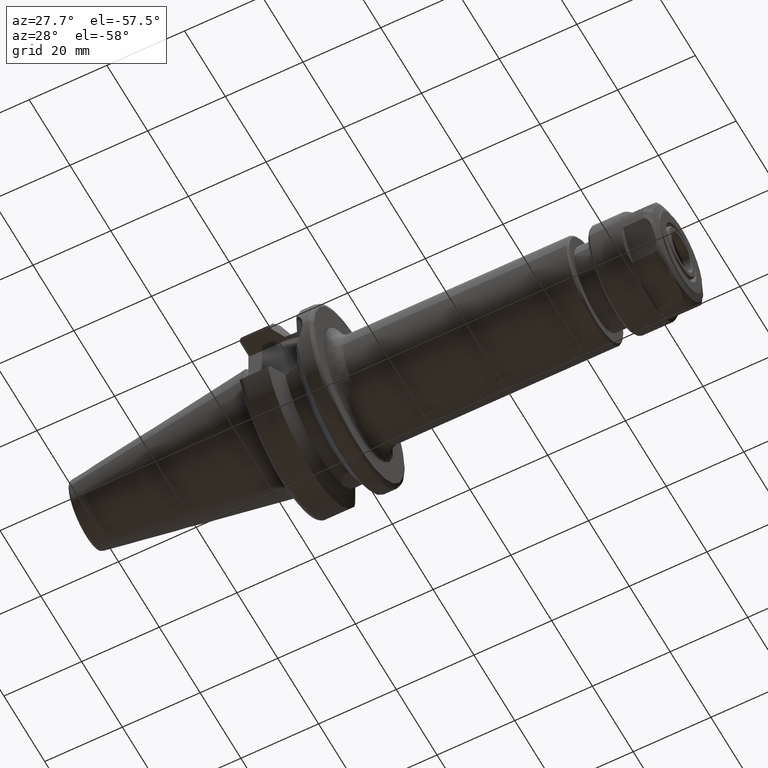
[diagram: clean part render]
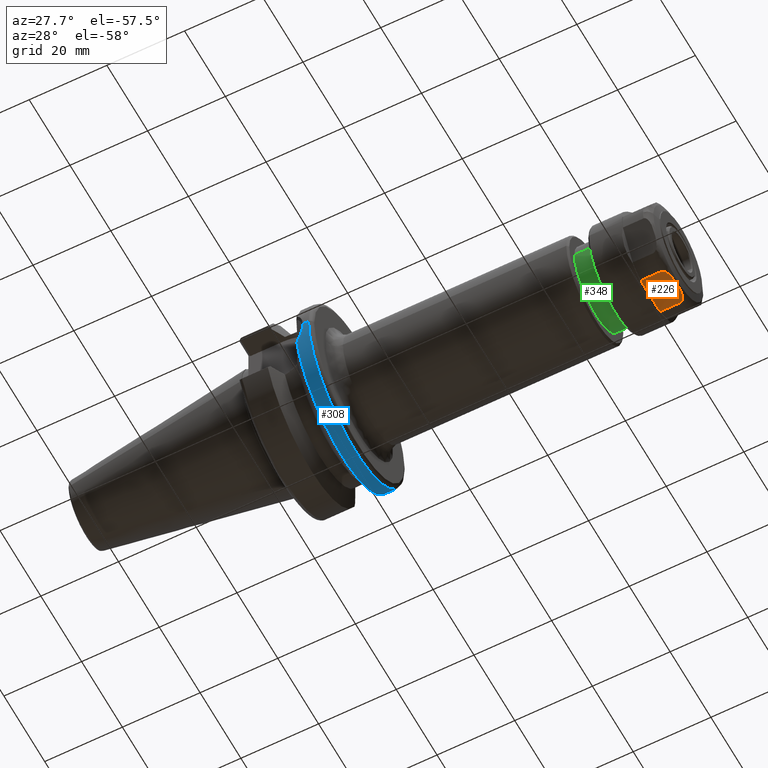
[diagram: same view with three faces highlighted in distinct colors, each labeled with its STEP entity id]
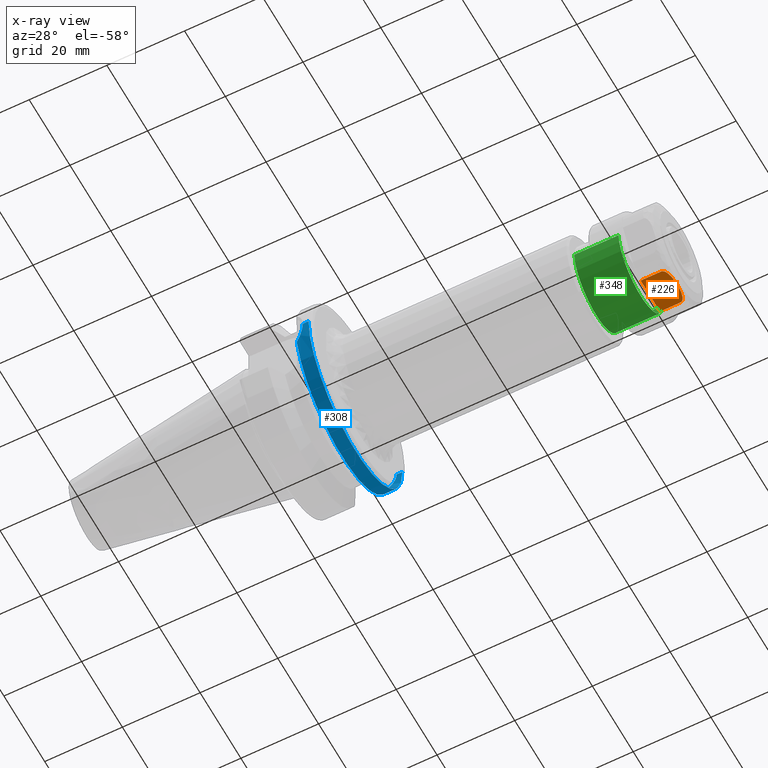
[diagram: x-ray of the same camera — body ghosted, the three highlighted faces saturated]
A machine part, auxiliary view with three faces highlighted in distinct colors.
The next image is the same camera in x-ray (body ghosted, the three faces saturated) — at least one of them is partly hidden behind the body in this view.
Their STEP definitions:

[orange] entity #226 — the highlighted planar face has unit normal (0, 0, 1).
#226=ADVANCED_FACE('',(#785),#784,.F.);
#784=PLANE('',#2609);
#785=FACE_OUTER_BOUND('',#2610,.T.);
#2606=CARTESIAN_POINT('',(1.04494649977E+02,5.67911965009E+00,-1.27500000000E+01));
#2607=DIRECTION('',(2.57293005457E-15,2.22044604925E-16,1.00000000000E+00));
#2608=DIRECTION('',(-1.00000000000E+00,5.71305237466E-31,2.57293005457E-15));
#2609=AXIS2_PLACEMENT_3D('',#2606,#2607,#2608);
#2610=EDGE_LOOP('',(#4164,#4165,#4166,#4167));
#4164=ORIENTED_EDGE('',*,*,#4974,.T.);
#4165=ORIENTED_EDGE('',*,*,#4975,.T.);
#4166=ORIENTED_EDGE('',*,*,#4976,.T.);
#4167=ORIENTED_EDGE('',*,*,#4972,.F.);
#4972=EDGE_CURVE('',#5873,#5978,#5979,.T.);
#4974=EDGE_CURVE('',#5873,#5991,#5992,.T.);
#4975=EDGE_CURVE('',#5991,#5998,#5999,.T.);
#4976=EDGE_CURVE('',#5998,#5978,#6005,.T.);
#5873=VERTEX_POINT('',#8529);
#5978=VERTEX_POINT('',#8671);
#5979=LINE('',#8672,#8673);
#5991=VERTEX_POINT('',#8678);
#5992=LINE('',#8679,#8680);
#5998=VERTEX_POINT('',#8682);
#5999=(BOUNDED_CURVE() B_SPLINE_CURVE(3,(#8683,#8684,#8685,#8686,#8687,#8688,#8689,#8690,#8691,#8692,#8693,#8694,#8695,#8696,#8697,#8698,#8699,#8700,#8701,#8702,#8703,#8704,#8705,#8706,#8707,#8708,#8709,#8710,#8711,#8712,#8713,#8714),.UNSPECIFIED.,.F.,.F.) B_SPLINE_CURVE_WITH_KNOTS((4,2,2,2,2,2,2,2,2,2,2,2,2,2,2,4),(1.59478873352E-02,1.62801200290E-02,1.66123527228E-02,1.69445854166E-02,1.72768181104E-02,1.79412834980E-02,1.86057488856E-02,1.99346796608E-02,2.12636104360E-02,2.25925412111E-02,2.39214719863E-02,2.45859373739E-02,2.52504027615E-02,2.59148681491E-02,2.62471008429E-02,2.65793335367E-02),.UNSPECIFIED.) CURVE() GEOMETRIC_REPRESENTATION_ITEM() RATIONAL_B_SPLINE_CURVE((1.00000000000E+00,1.00000000000E+00,1.00000000000E+00,1.00000000000E+00,1.00000000000E+00,1.00000000000E+00,1.00000000000E+00,1.00000000000E+00,1.00000000000E+00,1.00000000000E+00,1.00000000000E+00,1.00000000000E+00,1.00000000000E+00,1.00000000000E+00,1.00000000000E+00,1.00000000000E+00,1.00000000000E+00,1.00000000000E+00,1.00000000000E+00,1.00000000000E+00,1.00000000000E+00,1.00000000000E+00,1.00000000000E+00,1.00000000000E+00,1.00000000000E+00,1.00000000000E+00,1.00000000000E+00,1.00000000000E+00,1.00000000000E+00,1.00000000000E+00,1.00000000000E+00,1.00000000000E+00)) REPRESENTATION_ITEM('') );
#6005=LINE('',#8715,#8716);
#8529=CARTESIAN_POINT('',(9.69000000000E+01,4.73259970841E+00,-1.27500000000E+01));
#8671=CARTESIAN_POINT('',(9.69000000000E+01,-4.73259970841E+00,-1.27500000000E+01));
#8672=CARTESIAN_POINT('',(9.69000000000E+01,4.73259970841E+00,-1.27500000000E+01));
#8673=VECTOR('',#8674,9.46519941681E+00);
#8674=DIRECTION('',(0.00000000000E+00,-1.00000000000E+00,1.87672415675E-16));
#8678=CARTESIAN_POINT('',(1.02167716229E+02,4.73259970841E+00,-1.27500000000E+01));
#8679=CARTESIAN_POINT('',(9.69000000000E+01,4.73259970841E+00,-1.27500000000E+01));
#8680=VECTOR('',#8681,5.26771622940E+00);
#8681=DIRECTION('',(1.00000000000E+00,0.00000000000E+00,0.00000000000E+00));
#8682=CARTESIAN_POINT('',(1.02167716229E+02,-4.73259970841E+00,-1.27500000000E+01));
#8683=CARTESIAN_POINT('',(1.02167716229E+02,4.73259970841E+00,-1.27500000000E+01));
#8684=CARTESIAN_POINT('',(1.02279862248E+02,4.73259970841E+00,-1.27500000000E+01));
#8685=CARTESIAN_POINT('',(1.02392367140E+02,4.70406768498E+00,-1.27500000000E+01));
#8686=CARTESIAN_POINT('',(1.02595948561E+02,4.60586069696E+00,-1.27500000000E+01));
#8687=CARTESIAN_POINT('',(1.02687201511E+02,4.53777843351E+00,-1.27500000000E+01));
#8688=CARTESIAN_POINT('',(1.02849952060E+02,4.38252692373E+00,-1.27500000000E+01));
#8689=CARTESIAN_POINT('',(1.02922160542E+02,4.29461393412E+00,-1.27500000000E+01));
#8690=CARTESIAN_POINT('',(1.03050152465E+02,4.11125813472E+00,-1.27500000000E+01));
#8691=CARTESIAN_POINT('',(1.03106785546E+02,4.01478363767E+00,-1.27500000000E+01));
#8692=CARTESIAN_POINT('',(1.03261053144E+02,3.71517680680E+00,-1.27500000000E+01));
#8693=CARTESIAN_POINT('',(1.03341450105E+02,3.50576656171E+00,-1.27500000000E+01));
#8694=CARTESIAN_POINT('',(1.03475223228E+02,3.08286179191E+00,-1.27500000000E+01));
#8695=CARTESIAN_POINT('',(1.03528760119E+02,2.86779801825E+00,-1.27500000000E+01));
#8696=CARTESIAN_POINT('',(1.03663096816E+02,2.21549898970E+00,-1.27500000000E+01));
#8697=CARTESIAN_POINT('',(1.03718086901E+02,1.77071088567E+00,-1.27500000000E+01));
#8698=CARTESIAN_POINT('',(1.03788720300E+02,8.82903885814E-01,-1.27500000000E+01));
#8699=CARTESIAN_POINT('',(1.03804227252E+02,4.36336693840E-01,-1.27500000000E+01));
#8700=CARTESIAN_POINT('',(1.03803814943E+02,-4.53155157651E-01,-1.27500000000E+01));
#8701=CARTESIAN_POINT('',(1.03787983617E+02,-8.96495959058E-01,-1.27500000000E+01));
#8702=CARTESIAN_POINT('',(1.03717022627E+02,-1.77964358147E+00,-1.27500000000E+01));
#8703=CARTESIAN_POINT('',(1.03662607679E+02,-2.21951467469E+00,-1.27500000000E+01));
#8704=CARTESIAN_POINT('',(1.03527210555E+02,-2.87448551856E+00,-1.27500000000E+01));
#8705=CARTESIAN_POINT('',(1.03473134453E+02,-3.09052883336E+00,-1.27500000000E+01));
#8706=CARTESIAN_POINT('',(1.03338902180E+02,-3.51272035086E+00,-1.27500000000E+01));
#8707=CARTESIAN_POINT('',(1.03259173166E+02,-3.71940909846E+00,-1.27500000000E+01));
#8708=CARTESIAN_POINT('',(1.03053954495E+02,-4.11679756457E+00,-1.27500000000E+01));
#8709=CARTESIAN_POINT('',(1.02930859355E+02,-4.30512183169E+00,-1.27500000000E+01));
#8710=CARTESIAN_POINT('',(1.02688520442E+02,-4.53663239512E+00,-1.27500000000E+01));
#8711=CARTESIAN_POINT('',(1.02596329656E+02,-4.60562308606E+00,-1.27500000000E+01));
#8712=CARTESIAN_POINT('',(1.02392660840E+02,-4.70397959929E+00,-1.27500000000E+01));
#8713=CARTESIAN_POINT('',(1.02281738246E+02,-4.73259970841E+00,-1.27500000000E+01));
#8714=CARTESIAN_POINT('',(1.02167716229E+02,-4.73259970841E+00,-1.27500000000E+01));
#8715=CARTESIAN_POINT('',(1.02167716229E+02,-4.73259970841E+00,-1.27500000000E+01));
#8716=VECTOR('',#8717,5.26771622940E+00);
#8717=DIRECTION('',(-1.00000000000E+00,0.00000000000E+00,0.00000000000E+00));

[blue] entity #308 — the highlighted cylindrical surface (partial cylindrical patch) has radius 23 mm, axis along (-1, -0, -0).
#308=ADVANCED_FACE('',(#1616),#1615,.T.);
#1615=CYLINDRICAL_SURFACE('',#3268,2.30000000000E+01);
#1616=FACE_OUTER_BOUND('',#3269,.T.);
#3265=CARTESIAN_POINT('',(9.80000000000E+01,0.00000000000E+00,0.00000000000E+00));
#3266=DIRECTION('',(-1.00000000000E+00,-0.00000000000E+00,-0.00000000000E+00));
#3267=DIRECTION('',(0.00000000000E+00,-1.00000000000E+00,0.00000000000E+00));
#3268=AXIS2_PLACEMENT_3D('',#3265,#3266,#3267);
#3269=EDGE_LOOP('',(#4570,#4571,#4572,#4573,#4574,#4575));
#4570=ORIENTED_EDGE('',*,*,#5175,.F.);
#4571=ORIENTED_EDGE('',*,*,#5172,.T.);
#4572=ORIENTED_EDGE('',*,*,#5156,.T.);
#4573=ORIENTED_EDGE('',*,*,#5143,.T.);
#4574=ORIENTED_EDGE('',*,*,#5166,.T.);
#4575=ORIENTED_EDGE('',*,*,#5174,.F.);
#5143=EDGE_CURVE('',#7118,#7119,#7120,.T.);
#5156=EDGE_CURVE('',#7201,#7118,#7202,.T.);
#5166=EDGE_CURVE('',#7119,#7260,#7267,.T.);
#5172=EDGE_CURVE('',#7304,#7201,#7305,.T.);
#5174=EDGE_CURVE('',#7311,#7260,#7318,.T.);
#5175=EDGE_CURVE('',#7304,#7311,#7324,.T.);
#7118=VERTEX_POINT('',#9562);
#7119=VERTEX_POINT('',#9563);
#7120=CIRCLE('',#9567,2.30000000000E+01);
#7201=VERTEX_POINT('',#9617);
#7202=(BOUNDED_CURVE() B_SPLINE_CURVE(3,(#9618,#9619,#9620,#9621,#9622,#9623,#9624,#9625,#9626,#9627),.UNSPECIFIED.,.F.,.F.) B_SPLINE_CURVE_WITH_KNOTS((4,1,1,1,1,1,1,4),(4.99991747131E-01,6.24085882940E-01,7.50212113034E-01,8.00657128743E-01,8.50647832213E-01,9.00393536455E-01,9.50106650331E-01,1.00000000000E+00),.UNSPECIFIED.) CURVE() GEOMETRIC_REPRESENTATION_ITEM() RATIONAL_B_SPLINE_CURVE((1.00000000000E+00,1.00000000000E+00,1.00000000000E+00,1.00000000000E+00,1.00000000000E+00,1.00000000000E+00,1.00000000000E+00,1.00000000000E+00,1.00000000000E+00,1.00000000000E+00)) REPRESENTATION_ITEM('') );
#7260=VERTEX_POINT('',#9670);
#7267=(BOUNDED_CURVE() B_SPLINE_CURVE(3,(#9676,#9677,#9678,#9679,#9680),.UNSPECIFIED.,.F.,.F.) B_SPLINE_CURVE_WITH_KNOTS((4,1,4),(0.00000000000E+00,3.33228621153E-01,4.99599299760E-01),.UNSPECIFIED.) CURVE() GEOMETRIC_REPRESENTATION_ITEM() RATIONAL_B_SPLINE_CURVE((1.00000000000E+00,1.00000000000E+00,1.00000000000E+00,1.00000000000E+00,1.00000000000E+00)) REPRESENTATION_ITEM('') );
#7304=VERTEX_POINT('',#9698);
#7305=(BOUNDED_CURVE() B_SPLINE_CURVE(1,(#9699,#9700),.UNSPECIFIED.,.F.,.F.) B_SPLINE_CURVE_WITH_KNOTS((2,2),(8.33333358172E-02,4.50979950360E-01),.UNSPECIFIED.) CURVE() GEOMETRIC_REPRESENTATION_ITEM() RATIONAL_B_SPLINE_CURVE((1.00000000000E+00,1.00000000000E+00)) REPRESENTATION_ITEM('') );
#7311=VERTEX_POINT('',#9701);
#7318=(BOUNDED_CURVE() B_SPLINE_CURVE(1,(#9706,#9707),.UNSPECIFIED.,.F.,.F.) B_SPLINE_CURVE_WITH_KNOTS((2,2),(8.33333333333E-02,4.50980536771E-01),.UNSPECIFIED.) CURVE() GEOMETRIC_REPRESENTATION_ITEM() RATIONAL_B_SPLINE_CURVE((7.50000000000E-01,7.50000000000E-01)) REPRESENTATION_ITEM('') );
#7324=CIRCLE('',#9711,2.30000000000E+01);
#9562=CARTESIAN_POINT('',(1.76000000000E+01,-2.23341284256E+01,-5.49424312077E+00));
#9563=CARTESIAN_POINT('',(1.76000000000E+01,2.23342620281E+01,-5.49369999732E+00));
#9564=CARTESIAN_POINT('',(1.76000000000E+01,0.00000000000E+00,0.00000000000E+00));
#9565=DIRECTION('',(1.00000000000E+00,-0.00000000000E+00,0.00000000000E+00));
#9566=DIRECTION('',(-0.00000000000E+00,-1.00000000000E+00,-0.00000000000E+00));
#9567=AXIS2_PLACEMENT_3D('',#9564,#9565,#9566);
#9617=CARTESIAN_POINT('',(1.95000018283E+01,-2.29999999807E+01,5.73573428534E-14));
#9618=CARTESIAN_POINT('',(1.95000014030E+01,-2.29999999886E+01,1.56466401788E-03));
#9619=CARTESIAN_POINT('',(1.95002665759E+01,-2.30000483679E+01,-4.92506152186E-01));
#9620=CARTESIAN_POINT('',(1.94174715010E+01,-2.29677372392E+01,-1.48885980969E+00));
#9621=CARTESIAN_POINT('',(1.91164167804E+01,-2.28545889355E+01,-2.64902679498E+00));
#9622=CARTESIAN_POINT('',(1.87965247471E+01,-2.27369219667E+01,-3.48338610686E+00));
#9623=CARTESIAN_POINT('',(1.85491501886E+01,-2.26480511810E+01,-4.02019263826E+00));
#9624=CARTESIAN_POINT('',(1.82676311336E+01,-2.25503728437E+01,-4.53474207570E+00));
#9625=CARTESIAN_POINT('',(1.79547345365E+01,-2.24456212520E+01,-5.02933452443E+00));
#9626=CARTESIAN_POINT('',(1.77191088823E+01,-2.23713375060E+01,-5.33908675861E+00));
#9627=CARTESIAN_POINT('',(1.76010828753E+01,-2.23341284256E+01,-5.49424312077E+00));
#9670=CARTESIAN_POINT('',(1.95000004288E+01,2.29999995472E+01,-4.49211490522E-03));
#9676=CARTESIAN_POINT('',(1.76003571769E+01,2.23342620281E+01,-5.49369999732E+00));
#9677=CARTESIAN_POINT('',(1.84077125682E+01,2.25879886360E+01,-4.47347441273E+00));
#9678=CARTESIAN_POINT('',(1.92714709410E+01,2.29125961230E+01,-2.65289476417E+00));
#9679=CARTESIAN_POINT('',(1.94997126257E+01,2.29999344027E+01,-6.64968883786E-01));
#9680=CARTESIAN_POINT('',(1.95000014967E+01,2.29999998522E+01,-2.96632795913E-03));
#9698=CARTESIAN_POINT('',(2.10000000000E+01,-2.30000000000E+01,1.18423789293E-15));
#9699=CARTESIAN_POINT('',(2.09999999899E+01,-2.30000000000E+01,0.00000000000E+00));
#9700=CARTESIAN_POINT('',(1.95000018025E+01,-2.30000000000E+01,0.00000000000E+00));
#9701=CARTESIAN_POINT('',(2.10000000000E+01,2.30000000000E+01,0.00000000000E+00));
#9706=CARTESIAN_POINT('',(2.10000000000E+01,2.30000000000E+01,0.00000000000E+00));
#9707=CARTESIAN_POINT('',(1.94999994100E+01,2.30000000000E+01,0.00000000000E+00));
#9708=CARTESIAN_POINT('',(2.10000000000E+01,0.00000000000E+00,0.00000000000E+00));
#9709=DIRECTION('',(1.00000000000E+00,0.00000000000E+00,0.00000000000E+00));
#9710=DIRECTION('',(0.00000000000E+00,1.00000000000E+00,-1.22464679915E-16));
#9711=AXIS2_PLACEMENT_3D('',#9708,#9709,#9710);

[green] entity #348 — the highlighted cylindrical surface (partial cylindrical patch) has radius 10.75 mm, axis along (-1, -0, -0).
#348=ADVANCED_FACE('',(#2016),#2015,.T.);
#2015=CYLINDRICAL_SURFACE('',#3750,1.07500000000E+01);
#2016=FACE_OUTER_BOUND('',#3751,.T.);
#3747=CARTESIAN_POINT('',(9.80000000000E+01,0.00000000000E+00,0.00000000000E+00));
#3748=DIRECTION('',(-1.00000000000E+00,-0.00000000000E+00,-0.00000000000E+00));
#3749=DIRECTION('',(-0.00000000000E+00,-1.00000000000E+00,-0.00000000000E+00));
#3750=AXIS2_PLACEMENT_3D('',#3747,#3748,#3749);
#3751=EDGE_LOOP('',(#4732,#4733,#4734,#4735));
#4732=ORIENTED_EDGE('',*,*,#5243,.F.);
#4733=ORIENTED_EDGE('',*,*,#5240,.T.);
#4734=ORIENTED_EDGE('',*,*,#5137,.T.);
#4735=ORIENTED_EDGE('',*,*,#5242,.F.);
#5137=EDGE_CURVE('',#7076,#7077,#7078,.T.);
#5240=EDGE_CURVE('',#7740,#7076,#7741,.T.);
#5242=EDGE_CURVE('',#7747,#7077,#7754,.T.);
#5243=EDGE_CURVE('',#7740,#7747,#7760,.T.);
#7076=VERTEX_POINT('',#9532);
#7077=VERTEX_POINT('',#9533);
#7078=CIRCLE('',#9537,1.07500000000E+01);
#7740=VERTEX_POINT('',#9932);
#7741=(BOUNDED_CURVE() B_SPLINE_CURVE(1,(#9933,#9934),.UNSPECIFIED.,.F.,.F.) B_SPLINE_CURVE_WITH_KNOTS((2,2),(8.33333343261E-02,9.16666667006E-01),.UNSPECIFIED.) CURVE() GEOMETRIC_REPRESENTATION_ITEM() RATIONAL_B_SPLINE_CURVE((1.00000000000E+00,1.00000000000E+00)) REPRESENTATION_ITEM('') );
#7747=VERTEX_POINT('',#9935);
#7754=(BOUNDED_CURVE() B_SPLINE_CURVE(1,(#9940,#9941),.UNSPECIFIED.,.F.,.F.) B_SPLINE_CURVE_WITH_KNOTS((2,2),(8.33333333333E-02,9.16666666667E-01),.UNSPECIFIED.) CURVE() GEOMETRIC_REPRESENTATION_ITEM() RATIONAL_B_SPLINE_CURVE((7.50000000000E-01,7.50000000000E-01)) REPRESENTATION_ITEM('') );
#7760=CIRCLE('',#9945,1.07500000000E+01);
#9532=CARTESIAN_POINT('',(8.30000000000E+01,-1.07500000000E+01,0.00000000000E+00));
#9533=CARTESIAN_POINT('',(8.30000000000E+01,1.07500000000E+01,0.00000000000E+00));
#9534=CARTESIAN_POINT('',(8.30000000000E+01,0.00000000000E+00,0.00000000000E+00));
#9535=DIRECTION('',(1.00000000000E+00,0.00000000000E+00,0.00000000000E+00));
#9536=DIRECTION('',(0.00000000000E+00,1.00000000000E+00,-1.22464679915E-16));
#9537=AXIS2_PLACEMENT_3D('',#9534,#9535,#9536);
#9932=CARTESIAN_POINT('',(9.44000000000E+01,-1.07500000000E+01,0.00000000000E+00));
#9933=CARTESIAN_POINT('',(9.43999999864E+01,-1.07500000000E+01,0.00000000000E+00));
#9934=CARTESIAN_POINT('',(8.29999999954E+01,-1.07500000000E+01,0.00000000000E+00));
#9935=CARTESIAN_POINT('',(9.44000000000E+01,1.07500000000E+01,0.00000000000E+00));
#9940=CARTESIAN_POINT('',(9.44000000000E+01,1.07500000000E+01,-1.18423789293E-15));
#9941=CARTESIAN_POINT('',(8.30000000000E+01,1.07500000000E+01,-1.18423789293E-15));
#9942=CARTESIAN_POINT('',(9.44000000000E+01,0.00000000000E+00,0.00000000000E+00));
#9943=DIRECTION('',(1.00000000000E+00,0.00000000000E+00,0.00000000000E+00));
#9944=DIRECTION('',(0.00000000000E+00,1.00000000000E+00,-1.22464679915E-16));
#9945=AXIS2_PLACEMENT_3D('',#9942,#9943,#9944);